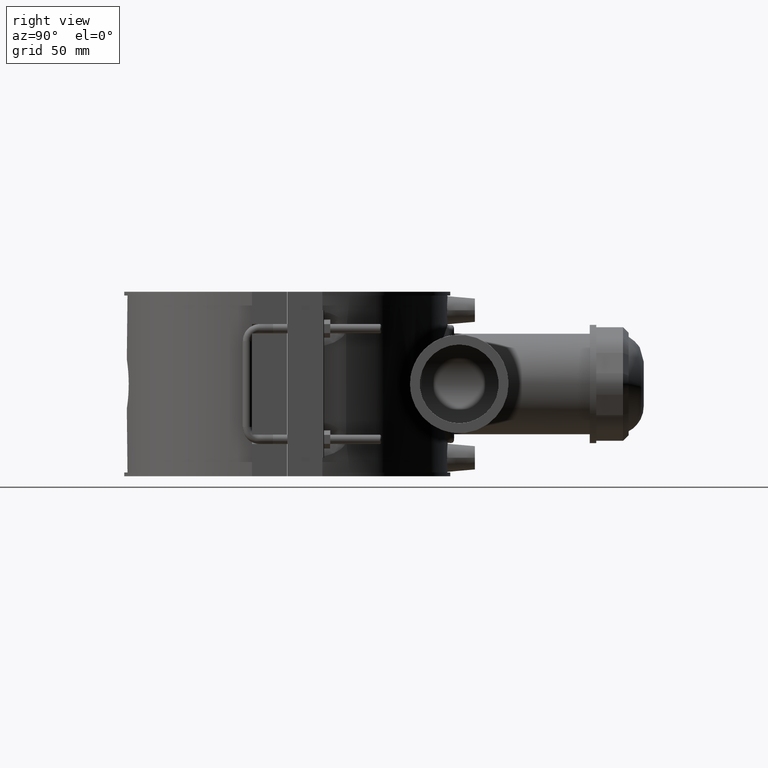
[diagram: clean part render]
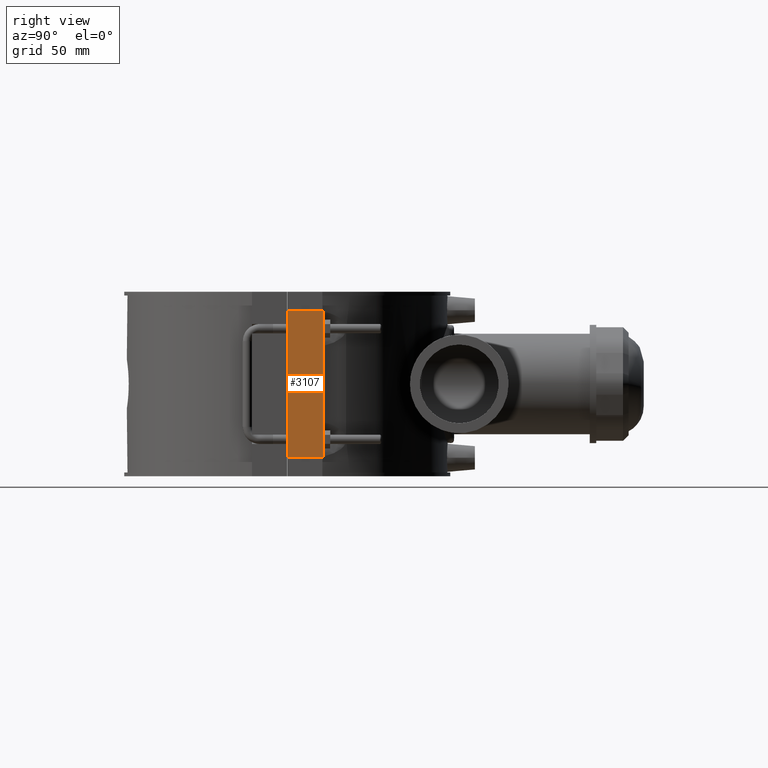
[diagram: same view with one face highlighted and labeled with its STEP entity id]
A machine part, right view. The second image highlights one B-rep face of the part: STEP entity #3107.
In plain terms, the highlighted planar face has unit normal (1, 0, 0).
Its self-contained STEP definition (entity closure, byte-faithful):
#64=LINE('',#4521,#343);
#216=LINE('',#5544,#495);
#217=LINE('',#5547,#496);
#218=LINE('',#5548,#497);
#343=VECTOR('',#3519,94.4);
#495=VECTOR('',#3961,22.9500000000001);
#496=VECTOR('',#3964,94.4);
#497=VECTOR('',#3965,22.9500000000001);
#663=PLANE('',#3347);
#962=FACE_OUTER_BOUND('',#1176,.T.);
#1176=EDGE_LOOP('',(#2529,#2530,#2531,#2532));
#1355=VERTEX_POINT('',#4518);
#1356=VERTEX_POINT('',#4520);
#1523=VERTEX_POINT('',#5539);
#1525=VERTEX_POINT('',#5546);
#1655=EDGE_CURVE('',#1355,#1356,#64,.T.);
#1892=EDGE_CURVE('',#1356,#1523,#216,.T.);
#1893=EDGE_CURVE('',#1523,#1525,#217,.T.);
#1894=EDGE_CURVE('',#1525,#1355,#218,.T.);
#2529=ORIENTED_EDGE('',*,*,#1893,.F.);
#2530=ORIENTED_EDGE('',*,*,#1892,.F.);
#2531=ORIENTED_EDGE('',*,*,#1655,.F.);
#2532=ORIENTED_EDGE('',*,*,#1894,.F.);
#3107=ADVANCED_FACE('',(#962),#663,.T.);
#3347=AXIS2_PLACEMENT_3D('',#5545,#3962,#3963);
#3519=DIRECTION('',(0.,0.,1.));
#3961=DIRECTION('',(0.,1.,0.));
#3962=DIRECTION('center_axis',(1.,0.,0.));
#3963=DIRECTION('ref_axis',(0.,1.,0.));
#3964=DIRECTION('',(0.,0.,-1.));
#3965=DIRECTION('',(0.,-1.,0.));
#4518=CARTESIAN_POINT('',(110.5,0.0499999999999989,-47.2));
#4520=CARTESIAN_POINT('',(110.5,0.0499999999999989,47.2));
#4521=CARTESIAN_POINT('',(110.5,0.0499999999999992,0.));
#5539=CARTESIAN_POINT('',(110.5,23.0000000000001,47.2));
#5544=CARTESIAN_POINT('',(110.5,0.0499999999999989,47.2));
#5545=CARTESIAN_POINT('Origin',(110.5,0.0499999999999992,0.));
#5546=CARTESIAN_POINT('',(110.5,23.0000000000001,-47.2));
#5547=CARTESIAN_POINT('',(110.5,23.0000000000001,0.));
#5548=CARTESIAN_POINT('',(110.5,0.0499999999999989,-47.2));